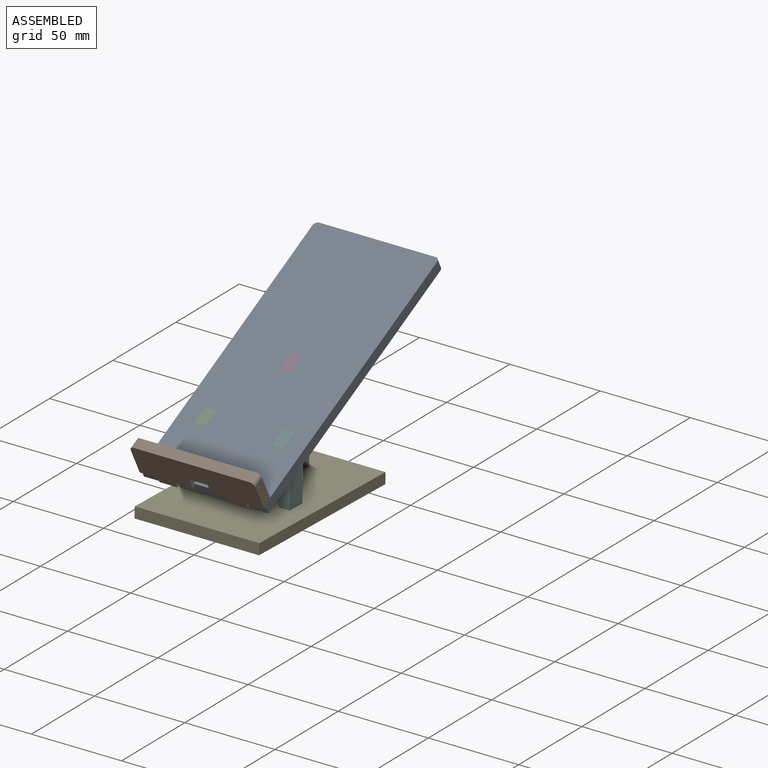
[diagram: assembled view]
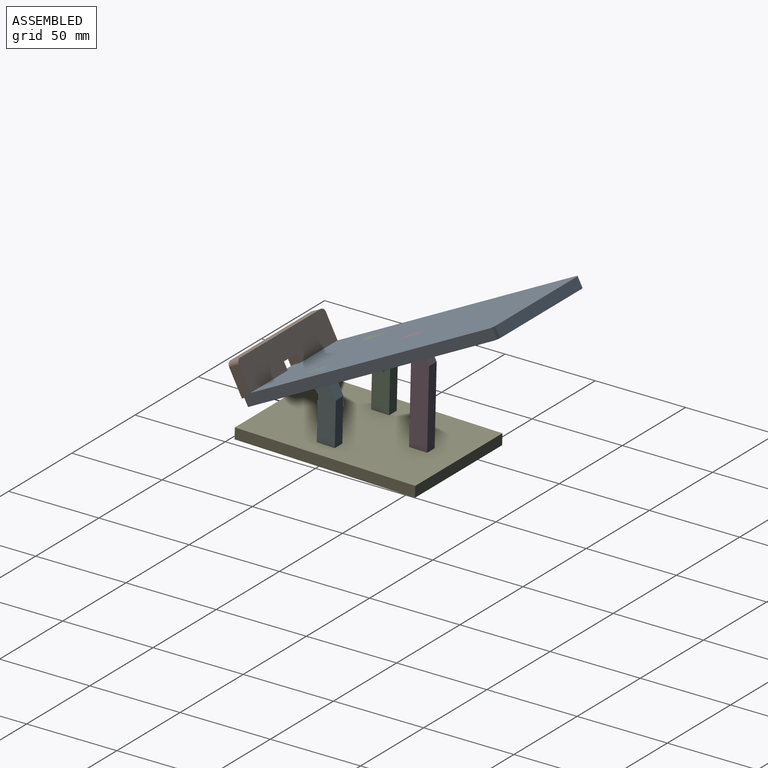
[diagram: assembled view, second angle]
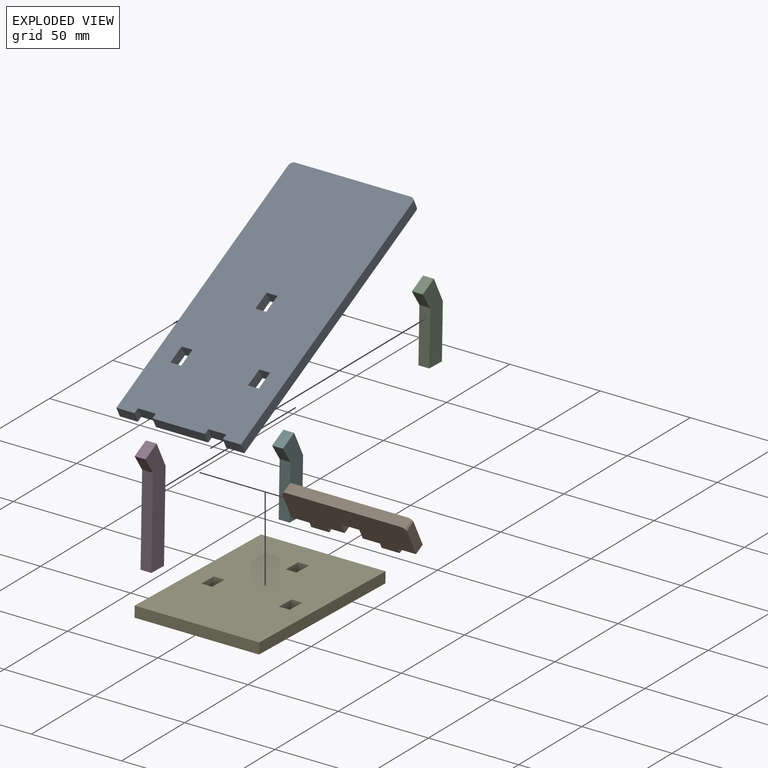
[diagram: exploded view]
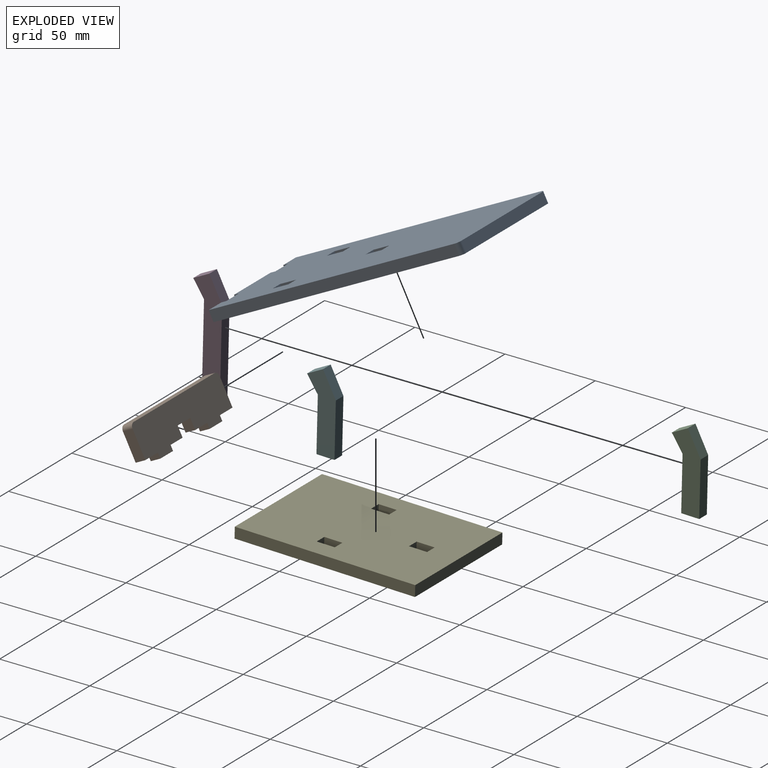
[diagram: exploded view, second angle]
ASSEMBLY  parts=6 mates=5
PART A: 28 faces, bbox 69x155.2x6 mm
  f0: plane 6x3mm, normal (-1,0,0), area 18mm2, adj f1,f25,f26,f27
  f1: plane 29x6mm, normal (0,-1,0), area 174mm2, adj f0,f2,f26,f27
  f2: plane 6x3mm, normal (1,0,0), area 18mm2, adj f1,f3,f26,f27
  f3: plane 10x6mm, normal (0,-1,0), area 60mm2, adj f2,f4,f26,f27
  f4: plane 6x3mm, normal (-1,0,0), area 18mm2, adj f3,f5,f26,f27
  f5: plane 10x6mm, normal (0,-1,0), area 60mm2, adj f4,f6,f26,f27
  f6: plane 152.7x6mm, normal (1,0,0), area 916.2mm2, adj f5,f7,f26,f27
  f7: cylinder r=2.5mm len=6mm, axis (0,0,-1), area 23.6mm2, adj f6,f8,f26,f27
  f8: plane 64x6mm, normal (0,1,0), area 384mm2, adj f7,f9,f26,f27
  f9: cylinder r=2.5mm len=6mm, axis (0,0,-1), area 23.6mm2, adj f8,f10,f26,f27
  f10: plane 152.7x6mm, normal (-1,0,0), area 916.2mm2, adj f9,f11,f26,f27
  f11: plane 10x6mm, normal (0,-1,0), area 60mm2, adj f10,f12,f26,f27
  f12: plane 6x3mm, normal (1,0,0), area 18mm2, adj f11,f25,f26,f27
  f13: plane 6x6mm, normal (0,1,0), area 36mm2, adj f14,f22,f26,f27
  f14: plane 10x6mm, normal (1,0,0), area 60mm2, adj f13,f15,f26,f27
  f15: plane 6x6mm, normal (0,-1,0), area 36mm2, adj f14,f22,f26,f27
  f16: plane 6x6mm, normal (0,1,0), area 36mm2, adj f17,f23,f26,f27
  f17: plane 10x6mm, normal (1,0,0), area 60mm2, adj f16,f18,f26,f27
  f18: plane 6x6mm, normal (0,-1,0), area 36mm2, adj f17,f23,f26,f27
  f19: plane 6x6mm, normal (0,1,0), area 36mm2, adj f20,f24,f26,f27
  f20: plane 10x6mm, normal (1,0,0), area 60mm2, adj f19,f21,f26,f27
  f21: plane 6x6mm, normal (0,-1,0), area 36mm2, adj f20,f24,f26,f27
  f22: plane 10x6mm, normal (-1,0,0), area 60mm2, adj f13,f15,f26,f27
  f23: plane 10x6mm, normal (-1,0,0), area 60mm2, adj f16,f18,f26,f27
  f24: plane 10x6mm, normal (-1,0,0), area 60mm2, adj f19,f21,f26,f27
  f25: plane 10x6mm, normal (0,-1,0), area 60mm2, adj f0,f12,f26,f27
  f26: plane 155.2x69mm, normal (0,0,1), area 10466.1mm2, adj f0,f1,f2,f3,f4,f5,f6,f7
  f27: plane 155.2x69mm, normal (0,0,-1), area 10466.1mm2, adj f0,f1,f2,f3,f4,f5,f6,f7
PART B: 20 faces, bbox 69x21x6 mm
  f0: plane 10x6mm, normal (0,1,0), area 60mm2, adj f1,f17,f18,f19
  f1: plane 6x6mm, normal (1,0,0), area 36mm2, adj f0,f2,f18,f19
  f2: plane 9.5x6mm, normal (0,1,0), area 57mm2, adj f1,f3,f18,f19
  f3: plane 6x3mm, normal (1,0,0), area 18mm2, adj f2,f4,f18,f19
  f4: plane 10x6mm, normal (0,1,0), area 60mm2, adj f3,f5,f18,f19
  f5: plane 6x3mm, normal (-1,0,0), area 18mm2, adj f4,f6,f18,f19
  f6: plane 10x6mm, normal (0,1,0), area 60mm2, adj f5,f7,f18,f19
  f7: plane 15.5x6mm, normal (-1,0,0), area 93mm2, adj f6,f8,f18,f19
  f8: cylinder r=2.5mm len=6mm, axis (0,0,-1), area 23.6mm2, adj f7,f9,f18,f19
  f9: plane 64x6mm, normal (0,-1,0), area 384mm2, adj f8,f10,f18,f19
  f10: cylinder r=2.5mm len=6mm, axis (0,0,-1), area 23.6mm2, adj f9,f11,f18,f19
  f11: plane 15.5x6mm, normal (1,0,0), area 93mm2, adj f10,f12,f18,f19
  f12: plane 10x6mm, normal (0,1,0), area 60mm2, adj f11,f13,f18,f19
  f13: plane 6x3mm, normal (1,0,0), area 18mm2, adj f12,f14,f18,f19
  f14: plane 10x6mm, normal (0,1,0), area 60mm2, adj f13,f15,f18,f19
  f15: plane 6x3mm, normal (-1,0,0), area 18mm2, adj f14,f16,f18,f19
  f16: plane 9.5x6mm, normal (0,1,0), area 57mm2, adj f15,f17,f18,f19
  f17: plane 6x6mm, normal (-1,0,0), area 36mm2, adj f0,f16,f18,f19
  f18: plane 69x21mm, normal (0,0,1), area 1239.3mm2, adj f0,f1,f2,f3,f4,f5,f6,f7
  f19: plane 69x21mm, normal (0,0,-1), area 1239.3mm2, adj f0,f1,f2,f3,f4,f5,f6,f7
PART C: 8 faces, bbox 16.2x43.6x6 mm
  f0: plane 8.78x6mm, normal (0.48,0.88,0), area 60mm2, adj f1,f5,f6,f7
  f1: plane 13.63x7.42mm, normal (-0.88,0.48,0), area 93.1mm2, adj f0,f2,f6,f7
  f2: plane 30x6mm, normal (-1,0,0), area 180mm2, adj f1,f3,f6,f7
  f3: plane 10x6mm, normal (0,-1,0), area 60mm2, adj f2,f4,f6,f7
  f4: plane 30x6mm, normal (1,0,0), area 180mm2, adj f3,f5,f6,f7
  f5: plane 8.85x6.2mm, normal (0.82,-0.57,0), area 64.8mm2, adj f0,f4,f6,f7
  f6: plane 43.63x16.2mm, normal (0,0,1), area 421.9mm2, adj f0,f1,f2,f3,f4,f5
  f7: plane 43.63x16.2mm, normal (0,0,-1), area 421.9mm2, adj f0,f1,f2,f3,f4,f5
PART D: 8 faces, bbox 16.2x63.3x6 mm
  f0: plane 8.78x6mm, normal (0.48,0.88,0), area 60mm2, adj f1,f5,f6,f7
  f1: plane 13.63x7.42mm, normal (-0.88,0.48,0), area 93.1mm2, adj f0,f2,f6,f7
  f2: plane 49.65x6mm, normal (-1,0,0), area 297.9mm2, adj f1,f3,f6,f7
  f3: plane 10x6mm, normal (0,-1,0), area 60mm2, adj f2,f4,f6,f7
  f4: plane 49.65x6mm, normal (1,0,0), area 297.9mm2, adj f3,f5,f6,f7
  f5: plane 8.85x6.2mm, normal (0.82,-0.57,0), area 64.8mm2, adj f0,f4,f6,f7
  f6: plane 63.28x16.2mm, normal (0,0,1), area 618.4mm2, adj f0,f1,f2,f3,f4,f5
  f7: plane 63.28x16.2mm, normal (0,0,-1), area 618.4mm2, adj f0,f1,f2,f3,f4,f5
PART E: 18 faces, bbox 69x100x6 mm
  f0: plane 100x6mm, normal (-1,0,0), area 600mm2, adj f1,f15,f16,f17
  f1: plane 69x6mm, normal (0,-1,0), area 414mm2, adj f0,f2,f16,f17
  f2: plane 100x6mm, normal (1,0,0), area 600mm2, adj f1,f15,f16,f17
  f3: plane 6x6mm, normal (0,1,0), area 36mm2, adj f4,f12,f16,f17
  f4: plane 10x6mm, normal (1,0,0), area 60mm2, adj f3,f5,f16,f17
  f5: plane 6x6mm, normal (0,-1,0), area 36mm2, adj f4,f12,f16,f17
  f6: plane 6x6mm, normal (0,1,0), area 36mm2, adj f7,f13,f16,f17
  f7: plane 10x6mm, normal (1,0,0), area 60mm2, adj f6,f8,f16,f17
  f8: plane 6x6mm, normal (0,-1,0), area 36mm2, adj f7,f13,f16,f17
  f9: plane 6x6mm, normal (0,1,0), area 36mm2, adj f10,f14,f16,f17
  f10: plane 10x6mm, normal (1,0,0), area 60mm2, adj f9,f11,f16,f17
  f11: plane 6x6mm, normal (0,-1,0), area 36mm2, adj f10,f14,f16,f17
  f12: plane 10x6mm, normal (-1,0,0), area 60mm2, adj f3,f5,f16,f17
  f13: plane 10x6mm, normal (-1,0,0), area 60mm2, adj f6,f8,f16,f17
  f14: plane 10x6mm, normal (-1,0,0), area 60mm2, adj f9,f11,f16,f17
  f15: plane 69x6mm, normal (0,1,0), area 414mm2, adj f0,f2,f16,f17
  f16: plane 100x69mm, normal (0,0,1), area 6720mm2, adj f0,f1,f2,f3,f4,f5,f6,f7
  f17: plane 100x69mm, normal (0,0,-1), area 6720mm2, adj f0,f1,f2,f3,f4,f5,f6,f7
PART F: 8 faces, bbox 16.2x43.6x6 mm
  f0: plane 8.78x6mm, normal (0.48,0.88,0), area 60mm2, adj f1,f5,f6,f7
  f1: plane 13.63x7.42mm, normal (-0.88,0.48,0), area 93.1mm2, adj f0,f2,f6,f7
  f2: plane 30x6mm, normal (-1,0,0), area 180mm2, adj f1,f3,f6,f7
  f3: plane 10x6mm, normal (0,-1,0), area 60mm2, adj f2,f4,f6,f7
  f4: plane 30x6mm, normal (1,0,0), area 180mm2, adj f3,f5,f6,f7
  f5: plane 8.85x6.2mm, normal (0.82,-0.57,0), area 64.8mm2, adj f0,f4,f6,f7
  f6: plane 43.63x16.2mm, normal (0,0,1), area 421.9mm2, adj f0,f1,f2,f3,f4,f5
  f7: plane 43.63x16.2mm, normal (0,0,-1), area 421.9mm2, adj f0,f1,f2,f3,f4,f5
PLACE A rot(axis=(1,0,0),27.1deg) t=(79.34,-22.92,89.06)mm
PLACE B rot(axis=(-1,0,0),62.9deg) t=(78.27,-40.82,-2.07)mm
PLACE C rot(axis=(0.57,-0.59,-0.57),119.2deg) t=(39.29,40.43,80.16)mm
PLACE D rot(axis=(0.57,-0.59,-0.57),119.2deg) t=(60.79,101.88,63.62)mm
PLACE E rot(axis=(-1,0,0),1.5deg) t=(186.33,-38.55,44.37)mm
PLACE F rot(axis=(0.57,-0.59,-0.57),119.2deg) t=(82.29,15.49,80.8)mm
MATE fastened A.f26 <-> D.f0  axis (0,-0.46,0.89) through (57.79,-1.54,106.73)mm
MATE fastened F.f3 <-> E.f17  axis (0,-0.03,-1) through (79.29,-31.83,44.2)mm
MATE fastened D.f3 <-> E.f17  axis (0,-0.03,-1) through (57.79,4.27,43.28)mm
MATE fastened C.f3 <-> E.f17  axis (0,-0.03,-1) through (36.29,-31.83,44.2)mm
MATE fastened B.f5 <-> A.f12  axis (-1,0,0) through (33.29,-72.74,66.95)mm
